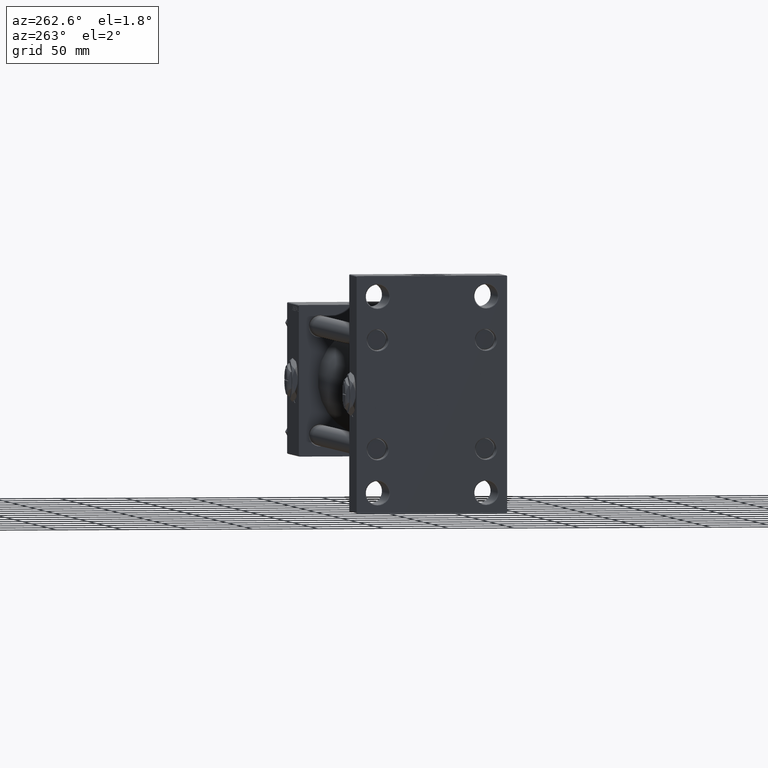
[diagram: clean part render]
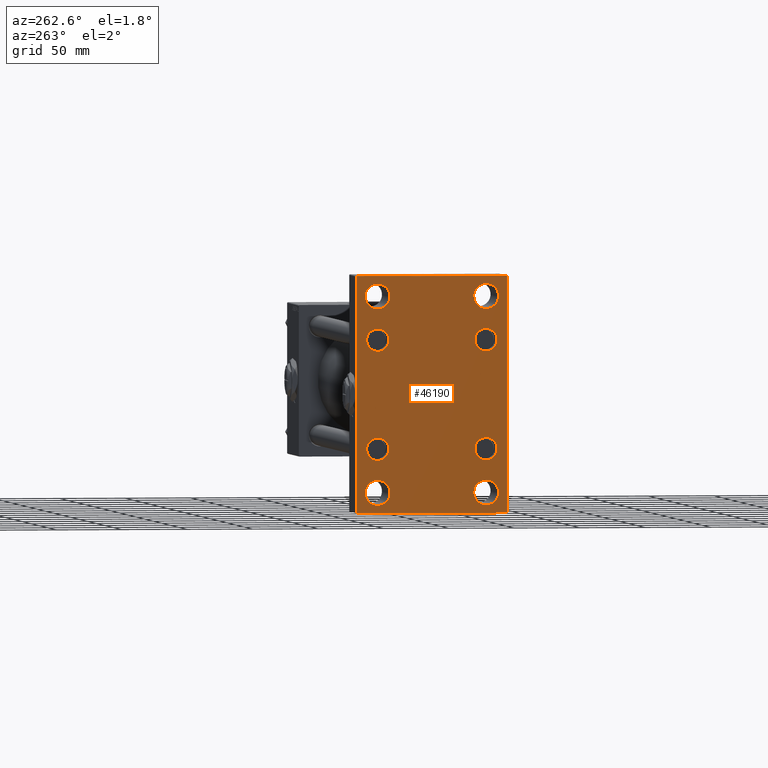
[diagram: same view with one face highlighted and labeled with its STEP entity id]
A machine part, auxiliary view. The second image highlights one B-rep face of the part: STEP entity #46190.
In plain terms, the highlighted planar face has unit normal (-1, 0, 0).
Its self-contained STEP definition (entity closure, byte-faithful):
#26 = CARTESIAN_POINT ( 'NONE',  ( 0.000000000000000000, 57.50000000000000000, -90.00000000000000000 ) ) ;
#45 = CARTESIAN_POINT ( 'NONE',  ( 0.000000000000000000, -41.50000000000000000, 84.00000000000011369 ) ) ;
#205 = FACE_BOUND ( 'NONE', #53521, .T. ) ;
#281 = CARTESIAN_POINT ( 'NONE',  ( 0.000000000000000000, 41.34999999999999432, -32.85000000000002274 ) ) ;
#482 = LINE ( 'NONE', #748, #27028 ) ;
#748 = CARTESIAN_POINT ( 'NONE',  ( 0.000000000000000000, -73.49999999999882050, -73.50000000000189004 ) ) ;
#844 = EDGE_CURVE ( 'NONE', #43539, #54138, #16304, .T. ) ;
#1671 = LINE ( 'NONE', #18370, #41225 ) ;
#2421 = VERTEX_POINT ( 'NONE', #26331 ) ;
#2998 = AXIS2_PLACEMENT_3D ( 'NONE', #24644, #45722, #16430 ) ;
#3286 = ORIENTED_EDGE ( 'NONE', *, *, #9195, .T. ) ;
#3715 = CARTESIAN_POINT ( 'NONE',  ( 0.000000000000000000, -57.49999999999999289, 89.99999999999998579 ) ) ;
#3851 = DIRECTION ( 'NONE',  ( 0.000000000000000000, 0.000000000000000000, 1.000000000000000000 ) ) ;
#4188 = VERTEX_POINT ( 'NONE', #33250 ) ;
#4225 = EDGE_CURVE ( 'NONE', #34995, #29886, #46362, .T. ) ;
#4908 = EDGE_CURVE ( 'NONE', #7349, #5482, #18166, .T. ) ;
#5482 = VERTEX_POINT ( 'NONE', #29816 ) ;
#5515 = CARTESIAN_POINT ( 'NONE',  ( 0.000000000000000000, 41.50000000000000711, -84.00000000000011369 ) ) ;
#5705 = VERTEX_POINT ( 'NONE', #33061 ) ;
#5910 = CARTESIAN_POINT ( 'NONE',  ( 0.000000000000000000, 57.50000000000000000, -89.49999999999994316 ) ) ;
#6022 = ORIENTED_EDGE ( 'NONE', *, *, #11143, .F. ) ;
#6028 = CARTESIAN_POINT ( 'NONE',  ( 0.000000000000000000, 57.50000000000000000, 90.00000000000000000 ) ) ;
#6632 = CARTESIAN_POINT ( 'NONE',  ( 0.000000000000000000, 41.34999999999999432, 49.84999999999998721 ) ) ;
#6789 = CARTESIAN_POINT ( 'NONE',  ( 0.000000000000000000, 41.50000000000000711, 84.00000000000011369 ) ) ;
#7111 = EDGE_CURVE ( 'NONE', #27436, #18214, #11195, .T. ) ;
#7349 = VERTEX_POINT ( 'NONE', #281 ) ;
#7563 = AXIS2_PLACEMENT_3D ( 'NONE', #31199, #10392, #27080 ) ;
#7650 = ORIENTED_EDGE ( 'NONE', *, *, #42205, .T. ) ;
#7787 = LINE ( 'NONE', #20374, #17355 ) ;
#7845 = DIRECTION ( 'NONE',  ( 1.000000000000000000, -0.000000000000000000, 0.000000000000000000 ) ) ;
#8089 = AXIS2_PLACEMENT_3D ( 'NONE', #47776, #26428, #14659 ) ;
#8246 = EDGE_CURVE ( 'NONE', #34356, #41263, #26915, .T. ) ;
#8433 = FACE_BOUND ( 'NONE', #24965, .T. ) ;
#8468 = ORIENTED_EDGE ( 'NONE', *, *, #50112, .F. ) ;
#8608 = AXIS2_PLACEMENT_3D ( 'NONE', #17666, #17397, #34368 ) ;
#8870 = CARTESIAN_POINT ( 'NONE',  ( 0.000000000000000000, 73.50000000000157740, 73.49999999999748468 ) ) ;
#8966 = CARTESIAN_POINT ( 'NONE',  ( 0.000000000000000000, -41.50000000000000000, 74.50000000000000000 ) ) ;
#9079 = VERTEX_POINT ( 'NONE', #13828 ) ;
#9195 = EDGE_CURVE ( 'NONE', #5705, #48258, #7787, .T. ) ;
#9826 = ORIENTED_EDGE ( 'NONE', *, *, #20086, .T. ) ;
#10392 = DIRECTION ( 'NONE',  ( 1.000000000000000000, -0.000000000000000000, 0.000000000000000000 ) ) ;
#11143 = EDGE_CURVE ( 'NONE', #5705, #49662, #33546, .T. ) ;
#11195 = CIRCLE ( 'NONE', #18162, 9.500000000000119016 ) ;
#11363 = DIRECTION ( 'NONE',  ( -0.000000000000000000, 0.7071067811865524577, 0.7071067811865426878 ) ) ;
#11585 = DIRECTION ( 'NONE',  ( 1.000000000000000000, -0.000000000000000000, 0.000000000000000000 ) ) ;
#11687 = CIRCLE ( 'NONE', #42263, 8.499999999999980460 ) ;
#11736 = DIRECTION ( 'NONE',  ( -1.000000000000000000, 0.000000000000000000, -0.000000000000000000 ) ) ;
#11918 = EDGE_CURVE ( 'NONE', #9079, #49662, #482, .T. ) ;
#12157 = CARTESIAN_POINT ( 'NONE',  ( 0.000000000000000000, -57.49999999999999289, -89.49999999999998579 ) ) ;
#12243 = AXIS2_PLACEMENT_3D ( 'NONE', #36767, #19516, #41128 ) ;
#12369 = CARTESIAN_POINT ( 'NONE',  ( 0.000000000000000000, -41.50000000000000000, -74.50000000000000000 ) ) ;
#12532 = ORIENTED_EDGE ( 'NONE', *, *, #32206, .T. ) ;
#12865 = ORIENTED_EDGE ( 'NONE', *, *, #22144, .T. ) ;
#12983 = EDGE_CURVE ( 'NONE', #21211, #48062, #33227, .T. ) ;
#13481 = DIRECTION ( 'NONE',  ( 1.000000000000000000, -0.000000000000000000, 0.000000000000000000 ) ) ;
#13552 = ORIENTED_EDGE ( 'NONE', *, *, #40645, .T. ) ;
#13635 = EDGE_CURVE ( 'NONE', #5482, #7349, #53383, .T. ) ;
#13797 = CARTESIAN_POINT ( 'NONE',  ( 0.000000000000000000, 41.34999999999999432, 32.85000000000002274 ) ) ;
#13828 = CARTESIAN_POINT ( 'NONE',  ( 0.000000000000000000, -56.99999999999998579, -90.00000000000002842 ) ) ;
#14063 = ORIENTED_EDGE ( 'NONE', *, *, #11918, .T. ) ;
#14277 = CARTESIAN_POINT ( 'NONE',  ( 0.000000000000000000, 41.50000000000000711, -74.50000000000000000 ) ) ;
#14379 = ORIENTED_EDGE ( 'NONE', *, *, #23617, .T. ) ;
#14659 = DIRECTION ( 'NONE',  ( 0.000000000000000000, 0.000000000000000000, 1.000000000000000000 ) ) ;
#14971 = DIRECTION ( 'NONE',  ( 0.000000000000000000, 0.000000000000000000, 1.000000000000000000 ) ) ;
#15061 = CARTESIAN_POINT ( 'NONE',  ( 0.000000000000000000, 41.50000000000000711, -64.99999999999987210 ) ) ;
#15514 = DIRECTION ( 'NONE',  ( 0.000000000000000000, 0.000000000000000000, 1.000000000000000000 ) ) ;
#16123 = CARTESIAN_POINT ( 'NONE',  ( 0.000000000000000000, 41.34999999999999432, -41.35000000000000142 ) ) ;
#16304 = CIRCLE ( 'NONE', #7563, 8.499999999999980460 ) ;
#16430 = DIRECTION ( 'NONE',  ( 0.000000000000000000, 0.000000000000000000, 1.000000000000000000 ) ) ;
#16729 = DIRECTION ( 'NONE',  ( 0.000000000000000000, -1.000000000000000000, -2.413528314402514583E-16 ) ) ;
#16975 = AXIS2_PLACEMENT_3D ( 'NONE', #32390, #11585, #28267 ) ;
#17355 = VECTOR ( 'NONE', #11363, 1000.000000000000000 ) ;
#17397 = DIRECTION ( 'NONE',  ( 1.000000000000000000, -0.000000000000000000, 0.000000000000000000 ) ) ;
#17450 = DIRECTION ( 'NONE',  ( 0.000000000000000000, -0.7071067811865622277, 0.7071067811865328068 ) ) ;
#17666 = CARTESIAN_POINT ( 'NONE',  ( 0.000000000000000000, 41.50000000000000711, 74.50000000000000000 ) ) ;
#17683 = CARTESIAN_POINT ( 'NONE',  ( 0.000000000000000000, -41.50000000000000000, -84.00000000000011369 ) ) ;
#18102 = CIRCLE ( 'NONE', #33878, 9.500000000000119016 ) ;
#18162 = AXIS2_PLACEMENT_3D ( 'NONE', #14277, #13481, #38390 ) ;
#18166 = CIRCLE ( 'NONE', #26025, 8.499999999999980460 ) ;
#18214 = VERTEX_POINT ( 'NONE', #15061 ) ;
#18370 = CARTESIAN_POINT ( 'NONE',  ( 0.000000000000000000, 57.50000000000000000, 90.00000000000000000 ) ) ;
#18514 = VERTEX_POINT ( 'NONE', #32519 ) ;
#18680 = EDGE_LOOP ( 'NONE', ( #49482, #53471 ) ) ;
#18792 = CARTESIAN_POINT ( 'NONE',  ( 0.000000000000000000, -41.34999999999998721, 41.35000000000000853 ) ) ;
#19516 = DIRECTION ( 'NONE',  ( 1.000000000000000000, -0.000000000000000000, 0.000000000000000000 ) ) ;
#19624 = DIRECTION ( 'NONE',  ( 1.000000000000000000, -0.000000000000000000, 0.000000000000000000 ) ) ;
#19852 = DIRECTION ( 'NONE',  ( 0.000000000000000000, 0.000000000000000000, 1.000000000000000000 ) ) ;
#20086 = EDGE_CURVE ( 'NONE', #29886, #34667, #1671, .T. ) ;
#20374 = CARTESIAN_POINT ( 'NONE',  ( -0.000000000000000000, -73.49999999999960210, 73.50000000000062528 ) ) ;
#20974 = DIRECTION ( 'NONE',  ( 0.000000000000000000, 0.000000000000000000, 1.000000000000000000 ) ) ;
#20999 = CARTESIAN_POINT ( 'NONE',  ( 0.000000000000000000, -41.34999999999998721, -32.85000000000002984 ) ) ;
#21211 = VERTEX_POINT ( 'NONE', #20999 ) ;
#21402 = VERTEX_POINT ( 'NONE', #17683 ) ;
#21545 = VERTEX_POINT ( 'NONE', #33798 ) ;
#22144 = EDGE_CURVE ( 'NONE', #48062, #21211, #53532, .T. ) ;
#22598 = EDGE_CURVE ( 'NONE', #18214, #27436, #42196, .T. ) ;
#22823 = ORIENTED_EDGE ( 'NONE', *, *, #8246, .T. ) ;
#23617 = EDGE_CURVE ( 'NONE', #54138, #43539, #24864, .T. ) ;
#23751 = ORIENTED_EDGE ( 'NONE', *, *, #4225, .T. ) ;
#24644 = CARTESIAN_POINT ( 'NONE',  ( 0.000000000000000000, -41.50000000000000000, -74.50000000000000000 ) ) ;
#24864 = CIRCLE ( 'NONE', #12243, 8.499999999999980460 ) ;
#24965 = EDGE_LOOP ( 'NONE', ( #14379, #45378 ) ) ;
#25399 = AXIS2_PLACEMENT_3D ( 'NONE', #16123, #49511, #36117 ) ;
#25564 = DIRECTION ( 'NONE',  ( 0.000000000000000000, 0.7071067811865279218, -0.7071067811865672237 ) ) ;
#25656 = DIRECTION ( 'NONE',  ( 1.000000000000000000, -0.000000000000000000, 0.000000000000000000 ) ) ;
#26025 = AXIS2_PLACEMENT_3D ( 'NONE', #35736, #36281, #19852 ) ;
#26331 = CARTESIAN_POINT ( 'NONE',  ( 0.000000000000000000, -41.34999999999998721, 49.84999999999999432 ) ) ;
#26428 = DIRECTION ( 'NONE',  ( 1.000000000000000000, -0.000000000000000000, 0.000000000000000000 ) ) ;
#26915 = CIRCLE ( 'NONE', #8608, 9.500000000000119016 ) ;
#27028 = VECTOR ( 'NONE', #17450, 1000.000000000000000 ) ;
#27080 = DIRECTION ( 'NONE',  ( 0.000000000000000000, 0.000000000000000000, 1.000000000000000000 ) ) ;
#27436 = VERTEX_POINT ( 'NONE', #5515 ) ;
#27865 = ORIENTED_EDGE ( 'NONE', *, *, #22598, .T. ) ;
#28267 = DIRECTION ( 'NONE',  ( 0.000000000000000000, 0.000000000000000000, 1.000000000000000000 ) ) ;
#28442 = AXIS2_PLACEMENT_3D ( 'NONE', #48081, #39607, #14971 ) ;
#28659 = EDGE_CURVE ( 'NONE', #51717, #18514, #37625, .T. ) ;
#28692 = DIRECTION ( 'NONE',  ( -0.000000000000000000, 0.000000000000000000, 1.000000000000000000 ) ) ;
#28785 = DIRECTION ( 'NONE',  ( 1.000000000000000000, -0.000000000000000000, 0.000000000000000000 ) ) ;
#29233 = FACE_BOUND ( 'NONE', #18680, .T. ) ;
#29816 = CARTESIAN_POINT ( 'NONE',  ( 0.000000000000000000, 41.34999999999999432, -49.84999999999998721 ) ) ;
#29886 = VERTEX_POINT ( 'NONE', #41898 ) ;
#30006 = CIRCLE ( 'NONE', #2998, 9.500000000000119016 ) ;
#30407 = VECTOR ( 'NONE', #25564, 1000.000000000000000 ) ;
#30512 = CARTESIAN_POINT ( 'NONE',  ( 0.000000000000000000, 41.50000000000000711, 64.99999999999987210 ) ) ;
#30548 = VECTOR ( 'NONE', #33012, 1000.000000000000000 ) ;
#30975 = CIRCLE ( 'NONE', #31837, 9.500000000000119016 ) ;
#31199 = CARTESIAN_POINT ( 'NONE',  ( 0.000000000000000000, 41.34999999999999432, 41.35000000000000142 ) ) ;
#31397 = CARTESIAN_POINT ( 'NONE',  ( 0.000000000000000000, -41.34999999999998721, -41.35000000000000853 ) ) ;
#31420 = ORIENTED_EDGE ( 'NONE', *, *, #40061, .T. ) ;
#31832 = ORIENTED_EDGE ( 'NONE', *, *, #12983, .T. ) ;
#31837 = AXIS2_PLACEMENT_3D ( 'NONE', #32610, #33420, #3851 ) ;
#32124 = CARTESIAN_POINT ( 'NONE',  ( 0.000000000000000000, 57.00000000000000000, 90.00000000000000000 ) ) ;
#32206 = EDGE_CURVE ( 'NONE', #4188, #9079, #37530, .T. ) ;
#32252 = EDGE_LOOP ( 'NONE', ( #33107, #36701 ) ) ;
#32390 = CARTESIAN_POINT ( 'NONE',  ( 0.000000000000000000, 41.50000000000000711, -74.50000000000000000 ) ) ;
#32519 = CARTESIAN_POINT ( 'NONE',  ( 0.000000000000000000, -41.50000000000000000, 64.99999999999987210 ) ) ;
#32610 = CARTESIAN_POINT ( 'NONE',  ( 0.000000000000000000, 41.50000000000000711, 74.50000000000000000 ) ) ;
#32884 = EDGE_LOOP ( 'NONE', ( #9826, #48713, #12532, #14063, #6022, #3286, #8468, #23751 ) ) ;
#33012 = DIRECTION ( 'NONE',  ( 0.000000000000000000, 0.000000000000000000, -1.000000000000000000 ) ) ;
#33061 = CARTESIAN_POINT ( 'NONE',  ( 0.000000000000000000, -57.49999999999999289, 89.50000000000001421 ) ) ;
#33080 = CARTESIAN_POINT ( 'NONE',  ( 0.000000000000000000, 0.000000000000000000, 0.000000000000000000 ) ) ;
#33107 = ORIENTED_EDGE ( 'NONE', *, *, #28659, .T. ) ;
#33227 = CIRCLE ( 'NONE', #44585, 8.499999999999980460 ) ;
#33250 = CARTESIAN_POINT ( 'NONE',  ( 0.000000000000000000, 57.00000000000000000, -90.00000000000000000 ) ) ;
#33350 = FACE_BOUND ( 'NONE', #32252, .T. ) ;
#33420 = DIRECTION ( 'NONE',  ( 1.000000000000000000, -0.000000000000000000, 0.000000000000000000 ) ) ;
#33546 = LINE ( 'NONE', #3715, #30548 ) ;
#33798 = CARTESIAN_POINT ( 'NONE',  ( 0.000000000000000000, -41.50000000000000000, -64.99999999999987210 ) ) ;
#33878 = AXIS2_PLACEMENT_3D ( 'NONE', #12369, #28785, #44942 ) ;
#33880 = EDGE_CURVE ( 'NONE', #34667, #4188, #41923, .T. ) ;
#34356 = VERTEX_POINT ( 'NONE', #6789 ) ;
#34368 = DIRECTION ( 'NONE',  ( 0.000000000000000000, 0.000000000000000000, 1.000000000000000000 ) ) ;
#34667 = VERTEX_POINT ( 'NONE', #5910 ) ;
#34995 = VERTEX_POINT ( 'NONE', #32124 ) ;
#35002 = AXIS2_PLACEMENT_3D ( 'NONE', #8966, #25656, #42621 ) ;
#35153 = EDGE_LOOP ( 'NONE', ( #27865, #52981 ) ) ;
#35736 = CARTESIAN_POINT ( 'NONE',  ( 0.000000000000000000, 41.34999999999999432, -41.35000000000000142 ) ) ;
#36117 = DIRECTION ( 'NONE',  ( 0.000000000000000000, 0.000000000000000000, 1.000000000000000000 ) ) ;
#36198 = CARTESIAN_POINT ( 'NONE',  ( 0.000000000000000000, -57.00000000000001421, 89.99999999999998579 ) ) ;
#36281 = DIRECTION ( 'NONE',  ( 1.000000000000000000, -0.000000000000000000, 0.000000000000000000 ) ) ;
#36321 = DIRECTION ( 'NONE',  ( 0.000000000000000000, 0.000000000000000000, 1.000000000000000000 ) ) ;
#36607 = DIRECTION ( 'NONE',  ( 0.000000000000000000, -1.000000000000000000, -1.206764157201257291E-16 ) ) ;
#36701 = ORIENTED_EDGE ( 'NONE', *, *, #53743, .T. ) ;
#36719 = EDGE_LOOP ( 'NONE', ( #7650, #31420 ) ) ;
#36767 = CARTESIAN_POINT ( 'NONE',  ( 0.000000000000000000, 41.34999999999999432, 41.35000000000000142 ) ) ;
#37079 = CIRCLE ( 'NONE', #44024, 9.500000000000119016 ) ;
#37530 = LINE ( 'NONE', #26, #38632 ) ;
#37625 = CIRCLE ( 'NONE', #35002, 9.500000000000119016 ) ;
#37822 = VECTOR ( 'NONE', #46032, 1000.000000000000114 ) ;
#38390 = DIRECTION ( 'NONE',  ( 0.000000000000000000, 0.000000000000000000, 1.000000000000000000 ) ) ;
#38632 = VECTOR ( 'NONE', #16729, 1000.000000000000000 ) ;
#39607 = DIRECTION ( 'NONE',  ( 1.000000000000000000, -0.000000000000000000, 0.000000000000000000 ) ) ;
#39764 = CIRCLE ( 'NONE', #28442, 8.499999999999980460 ) ;
#40061 = EDGE_CURVE ( 'NONE', #47285, #2421, #11687, .T. ) ;
#40645 = EDGE_CURVE ( 'NONE', #41263, #34356, #30975, .T. ) ;
#41128 = DIRECTION ( 'NONE',  ( 0.000000000000000000, 0.000000000000000000, 1.000000000000000000 ) ) ;
#41225 = VECTOR ( 'NONE', #44636, 1000.000000000000000 ) ;
#41263 = VERTEX_POINT ( 'NONE', #30512 ) ;
#41281 = FACE_BOUND ( 'NONE', #36719, .T. ) ;
#41549 = FACE_BOUND ( 'NONE', #35153, .T. ) ;
#41820 = FACE_BOUND ( 'NONE', #46057, .T. ) ;
#41898 = CARTESIAN_POINT ( 'NONE',  ( 0.000000000000000000, 57.50000000000000000, 89.49999999999997158 ) ) ;
#41923 = LINE ( 'NONE', #49868, #37822 ) ;
#42196 = CIRCLE ( 'NONE', #16975, 9.500000000000119016 ) ;
#42205 = EDGE_CURVE ( 'NONE', #2421, #47285, #39764, .T. ) ;
#42263 = AXIS2_PLACEMENT_3D ( 'NONE', #18792, #44525, #15514 ) ;
#42621 = DIRECTION ( 'NONE',  ( 0.000000000000000000, 0.000000000000000000, 1.000000000000000000 ) ) ;
#43539 = VERTEX_POINT ( 'NONE', #13797 ) ;
#44024 = AXIS2_PLACEMENT_3D ( 'NONE', #53556, #7845, #20974 ) ;
#44525 = DIRECTION ( 'NONE',  ( 1.000000000000000000, -0.000000000000000000, 0.000000000000000000 ) ) ;
#44585 = AXIS2_PLACEMENT_3D ( 'NONE', #31397, #19624, #36321 ) ;
#44636 = DIRECTION ( 'NONE',  ( 0.000000000000000000, 0.000000000000000000, -1.000000000000000000 ) ) ;
#44942 = DIRECTION ( 'NONE',  ( 0.000000000000000000, 0.000000000000000000, 1.000000000000000000 ) ) ;
#45154 = AXIS2_PLACEMENT_3D ( 'NONE', #33080, #11736, #28692 ) ;
#45378 = ORIENTED_EDGE ( 'NONE', *, *, #844, .T. ) ;
#45388 = FACE_BOUND ( 'NONE', #52904, .T. ) ;
#45722 = DIRECTION ( 'NONE',  ( 1.000000000000000000, -0.000000000000000000, 0.000000000000000000 ) ) ;
#45924 = PLANE ( 'NONE',  #45154 ) ;
#46032 = DIRECTION ( 'NONE',  ( -0.000000000000000000, -0.7071067811865474617, -0.7071067811865474617 ) ) ;
#46057 = EDGE_LOOP ( 'NONE', ( #31832, #12865 ) ) ;
#46092 = CARTESIAN_POINT ( 'NONE',  ( 0.000000000000000000, -41.34999999999998721, -49.84999999999999432 ) ) ;
#46190 = ADVANCED_FACE ( 'NONE', ( #205, #33350, #45388, #41549, #41281, #41820, #29233, #8433, #50034 ), #45924, .T. ) ;
#46362 = LINE ( 'NONE', #8870, #30407 ) ;
#46731 = ORIENTED_EDGE ( 'NONE', *, *, #47533, .T. ) ;
#47049 = VECTOR ( 'NONE', #36607, 1000.000000000000000 ) ;
#47285 = VERTEX_POINT ( 'NONE', #53766 ) ;
#47533 = EDGE_CURVE ( 'NONE', #21402, #21545, #18102, .T. ) ;
#47776 = CARTESIAN_POINT ( 'NONE',  ( 0.000000000000000000, -41.34999999999998721, -41.35000000000000853 ) ) ;
#47885 = LINE ( 'NONE', #6028, #47049 ) ;
#48062 = VERTEX_POINT ( 'NONE', #46092 ) ;
#48081 = CARTESIAN_POINT ( 'NONE',  ( 0.000000000000000000, -41.34999999999998721, 41.35000000000000853 ) ) ;
#48258 = VERTEX_POINT ( 'NONE', #36198 ) ;
#48713 = ORIENTED_EDGE ( 'NONE', *, *, #33880, .T. ) ;
#49482 = ORIENTED_EDGE ( 'NONE', *, *, #4908, .T. ) ;
#49511 = DIRECTION ( 'NONE',  ( 1.000000000000000000, -0.000000000000000000, 0.000000000000000000 ) ) ;
#49662 = VERTEX_POINT ( 'NONE', #12157 ) ;
#49868 = CARTESIAN_POINT ( 'NONE',  ( 0.000000000000000000, 73.50000000000000000, -73.50000000000000000 ) ) ;
#50034 = FACE_OUTER_BOUND ( 'NONE', #32884, .T. ) ;
#50112 = EDGE_CURVE ( 'NONE', #34995, #48258, #47885, .T. ) ;
#50231 = ORIENTED_EDGE ( 'NONE', *, *, #52018, .T. ) ;
#51717 = VERTEX_POINT ( 'NONE', #45 ) ;
#52018 = EDGE_CURVE ( 'NONE', #21545, #21402, #30006, .T. ) ;
#52904 = EDGE_LOOP ( 'NONE', ( #50231, #46731 ) ) ;
#52981 = ORIENTED_EDGE ( 'NONE', *, *, #7111, .T. ) ;
#53383 = CIRCLE ( 'NONE', #25399, 8.499999999999980460 ) ;
#53471 = ORIENTED_EDGE ( 'NONE', *, *, #13635, .T. ) ;
#53521 = EDGE_LOOP ( 'NONE', ( #22823, #13552 ) ) ;
#53532 = CIRCLE ( 'NONE', #8089, 8.499999999999980460 ) ;
#53556 = CARTESIAN_POINT ( 'NONE',  ( 0.000000000000000000, -41.50000000000000000, 74.50000000000000000 ) ) ;
#53743 = EDGE_CURVE ( 'NONE', #18514, #51717, #37079, .T. ) ;
#53766 = CARTESIAN_POINT ( 'NONE',  ( 0.000000000000000000, -41.34999999999998721, 32.85000000000002984 ) ) ;
#54138 = VERTEX_POINT ( 'NONE', #6632 ) ;